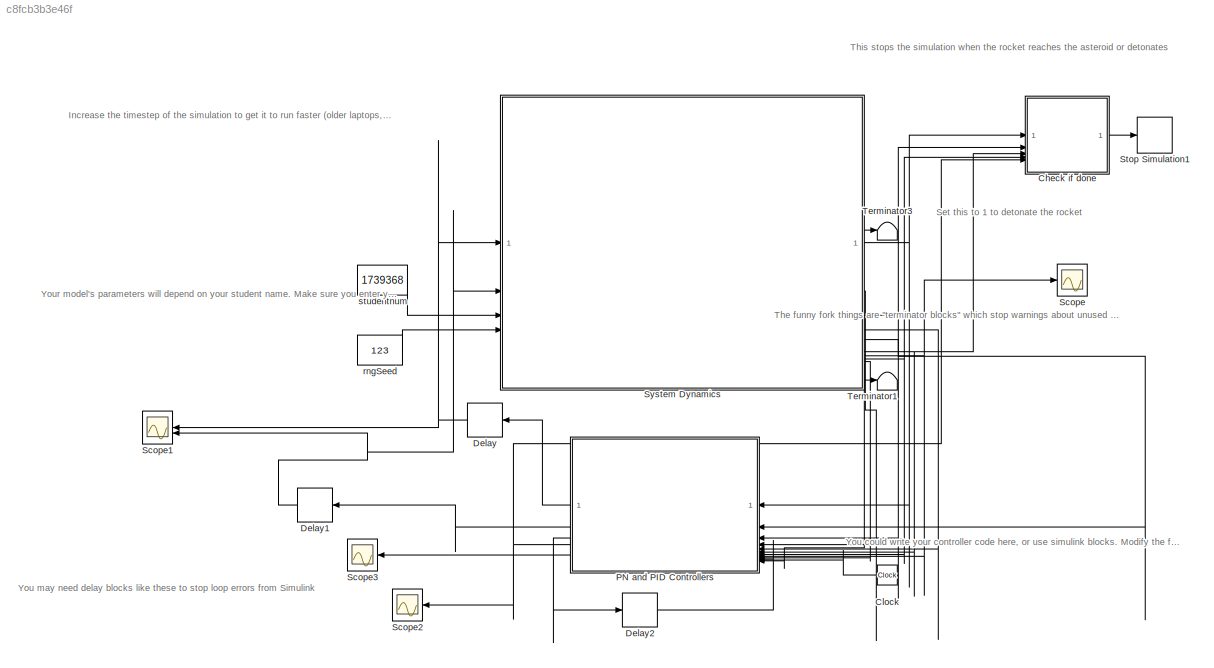
MODEL slx_c8fcb3b3e46f
KIND model
CONFIG AbsTol = auto
CONFIG EnableMultiTasking = off
CONFIG FixedStep = 0.001
CONFIG MaxStep = auto
CONFIG MinStep = auto
CONFIG RelTol = 1e-3
CONFIG SampleTimeConstraint = Unconstrained
CONFIG SolverName = ode4
CONFIG StartTime = 0.0
CONFIG StopTime = 45
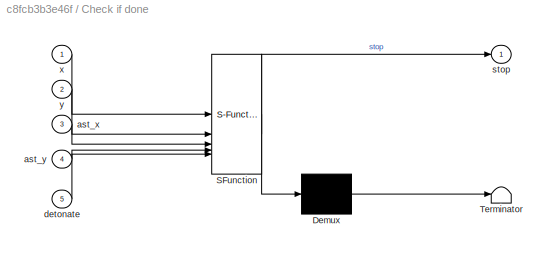
BLOCK [SubSystem] Check if done
  ErrorFcn = Stateflow.Translate.translate
  PermitHierarchicalResolution = ExplicitOnly
  SFBlockType = MATLAB Function
  TreatAsAtomicUnit = on
BLOCK [Demux] Check if done/ Demux 
  Outputs = 1
BLOCK [S-Function] Check if done/ SFunction 
  EnableBusSupport = on
  FunctionName = sf_sfun
  PortCounts = [5 2]
  SFcnIsStateOwnerBlock = off
  SFunctionDeploymentMode = off
  Tag = Stateflow S-Function 4
BLOCK [Terminator] Check if done/ Terminator 
BLOCK [Inport] Check if done/ast_x
  Port = 3
BLOCK [Inport] Check if done/ast_y
  Port = 4
BLOCK [Inport] Check if done/detonate
  Port = 5
BLOCK [Outport] Check if done/stop
  VectorParamsAs1DForOutWhenUnconnected = off
BLOCK [Inport] Check if done/x
BLOCK [Inport] Check if done/y
  Port = 2
BLOCK [Clock] Clock
  NameLocation = top
BLOCK [Delay] Delay
  DelayLength = 1
  InitialCondition = 10000000000
  InputPortMap = u0
  NameLocation = top
BLOCK [Delay] Delay1
  DelayLength = 1
  InputPortMap = u0
  NameLocation = top
BLOCK [Delay] Delay2
  DelayLength = 1
  InitialCondition = 0
  InputPortMap = u0
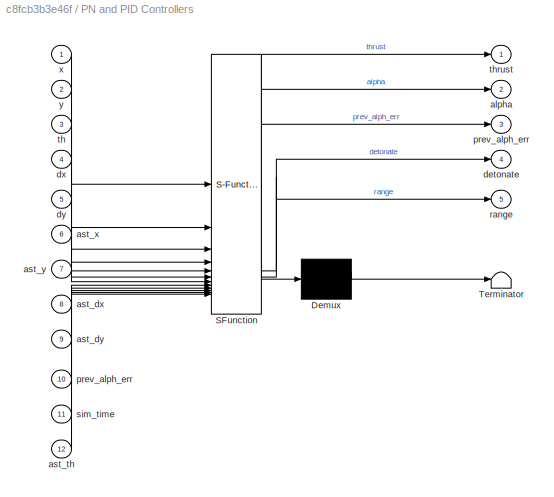
BLOCK [SubSystem] PN and PID Controllers
  ErrorFcn = Stateflow.Translate.translate
  PermitHierarchicalResolution = ExplicitOnly
  SFBlockType = MATLAB Function
  TreatAsAtomicUnit = on
BLOCK [Demux] PN and PID Controllers/ Demux 
  Outputs = 1
BLOCK [S-Function] PN and PID Controllers/ SFunction 
  EnableBusSupport = on
  FunctionName = sf_sfun
  PortCounts = [12 6]
  SFcnIsStateOwnerBlock = off
  SFunctionDeploymentMode = off
  Tag = Stateflow S-Function 2
BLOCK [Terminator] PN and PID Controllers/ Terminator 
BLOCK [Outport] PN and PID Controllers/alpha
  Port = 2
  VectorParamsAs1DForOutWhenUnconnected = off
BLOCK [Inport] PN and PID Controllers/ast_dx
  Port = 8
BLOCK [Inport] PN and PID Controllers/ast_dy
  Port = 9
BLOCK [Inport] PN and PID Controllers/ast_th
  Port = 12
BLOCK [Inport] PN and PID Controllers/ast_x
  Port = 6
BLOCK [Inport] PN and PID Controllers/ast_y
  Port = 7
BLOCK [Outport] PN and PID Controllers/detonate
  Port = 4
BLOCK [Inport] PN and PID Controllers/dx
  Port = 4
BLOCK [Inport] PN and PID Controllers/dy
  Port = 5
BLOCK [Outport] PN and PID Controllers/prev_alph_err
  Port = 3
BLOCK [Inport] PN and PID Controllers/prev_alph_err 
  Port = 10
BLOCK [Outport] PN and PID Controllers/range
  Port = 5
BLOCK [Inport] PN and PID Controllers/sim_time
  Port = 11
BLOCK [Inport] PN and PID Controllers/th
  Port = 3
BLOCK [Outport] PN and PID Controllers/thrust
  VectorParamsAs1DForOutWhenUnconnected = off
BLOCK [Inport] PN and PID Controllers/x
BLOCK [Inport] PN and PID Controllers/y
  Port = 2
BLOCK [Scope] Scope
  Floating = off
  NumInputPorts = 1
  ScopeSpecificationString = Simulink.scopes.TimeScopeBlockCfg('CurrentConfiguration', extmgr.ConfigurationSet(extmgr.Configuration('Core','General UI',true),extmgr.Configuration('Core','Source UI',true),extmgr.Configuration('Sources','WiredSimulink',true),extmgr.Configuration('Visuals','Time Domain',true,'SerializedDisplays',{struct('MinYLimReal','134.6873','MaxYLimReal','187.70967','YLabelReal','','MinYLimMag','134.6873','M...<+1395ch>
BLOCK [Scope] Scope1
  Floating = off
  NameLocation = top
  NumInputPorts = 2
  ScopeSpecificationString = Simulink.scopes.TimeScopeBlockCfg('CurrentConfiguration', extmgr.ConfigurationSet(extmgr.Configuration('Core','General UI',true),extmgr.Configuration('Core','Source UI',true),extmgr.Configuration('Sources','WiredSimulink',true,'DataLoggingVariableName','ScopeData1'),extmgr.Configuration('Visuals','Time Domain',true,'SerializedDisplays',{struct('MinYLimReal','-1250000004.4507','MaxYLimReal','112500...<+1470ch>
BLOCK [Scope] Scope2
  Floating = off
  NameLocation = top
  NumInputPorts = 1
  ScopeSpecificationString = Simulink.scopes.TimeScopeBlockCfg('CurrentConfiguration', extmgr.ConfigurationSet(extmgr.Configuration('Core','General UI',true),extmgr.Configuration('Core','Source UI',true),extmgr.Configuration('Sources','WiredSimulink',true,'DataLoggingVariableName','ScopeData1'),extmgr.Configuration('Visuals','Time Domain',true,'SerializedDisplays',{struct('MinYLimReal','-1.00000','MaxYLimReal','1.00000','YLab...<+1425ch>
BLOCK [Scope] Scope3
  Floating = off
  NameLocation = top
  NumInputPorts = 1
  ScopeSpecificationString = Simulink.scopes.TimeScopeBlockCfg('CurrentConfiguration', extmgr.ConfigurationSet(extmgr.Configuration('Core','General UI',true),extmgr.Configuration('Core','Source UI',true),extmgr.Configuration('Sources','WiredSimulink',true,'DataLoggingVariableName','ScopeData2'),extmgr.Configuration('Visuals','Time Domain',true,'SerializedDisplays',{struct('MinYLimReal','-223.44709','MaxYLimReal','4307.49421',...<+1745ch>
BLOCK [Stop] Stop Simulation1
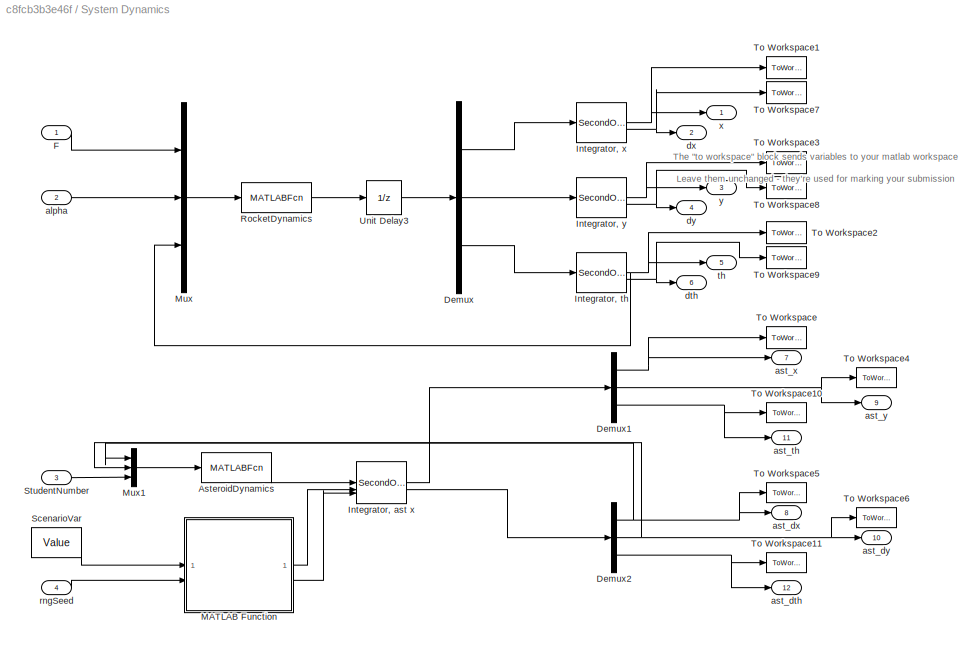
BLOCK [SubSystem] System Dynamics
  TreatAsAtomicUnit = on
BLOCK [MATLABFcn] System Dynamics/AsteroidDynamics
  MATLABFcn = AsteroidDynamics
  OutputDimensions = 3
BLOCK [Demux] System Dynamics/Demux
  Outputs = 3
BLOCK [Demux] System Dynamics/Demux1
  Outputs = 3
BLOCK [Demux] System Dynamics/Demux2
  Outputs = 3
BLOCK [Inport] System Dynamics/F
BLOCK [SecondOrderIntegrator] System Dynamics/Integrator, ast x
  ICSourceDXDT = external
  ICSourceX = external
  ICX = x0
BLOCK [SecondOrderIntegrator] System Dynamics/Integrator, th
  ICDXDT = 0
  ICX = 0
BLOCK [SecondOrderIntegrator] System Dynamics/Integrator, x
  ICX = 0
BLOCK [SecondOrderIntegrator] System Dynamics/Integrator, y
  ICX = 0
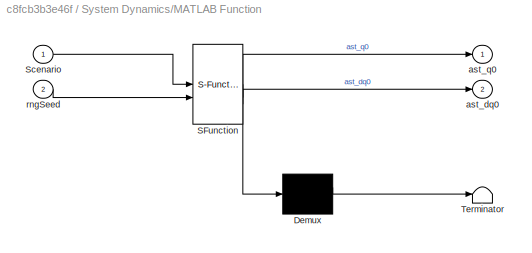
BLOCK [SubSystem] System Dynamics/MATLAB Function
  ErrorFcn = Stateflow.Translate.translate
  PermitHierarchicalResolution = ExplicitOnly
  SFBlockType = MATLAB Function
  TreatAsAtomicUnit = on
BLOCK [Demux] System Dynamics/MATLAB Function/ Demux 
  Outputs = 1
BLOCK [S-Function] System Dynamics/MATLAB Function/ SFunction 
  EnableBusSupport = on
  FunctionName = sf_sfun
  PortCounts = [2 3]
  SFcnIsStateOwnerBlock = off
  SFunctionDeploymentMode = off
  Tag = Stateflow S-Function 1
BLOCK [Terminator] System Dynamics/MATLAB Function/ Terminator 
BLOCK [Inport] System Dynamics/MATLAB Function/Scenario
BLOCK [Outport] System Dynamics/MATLAB Function/ast_dq0
  Port = 2
  VectorParamsAs1DForOutWhenUnconnected = off
BLOCK [Outport] System Dynamics/MATLAB Function/ast_q0
  VectorParamsAs1DForOutWhenUnconnected = off
BLOCK [Inport] System Dynamics/MATLAB Function/rngSeed
  Port = 2
BLOCK [Mux] System Dynamics/Mux
  DisplayOption = bar
  Inputs = 3
BLOCK [Mux] System Dynamics/Mux1
  DisplayOption = bar
  Inputs = 3
BLOCK [MATLABFcn] System Dynamics/RocketDynamics
  MATLABFcn = RocketDynamics
  Output1D = off
BLOCK [Constant] System Dynamics/ScenarioVar
  Value = Value
BLOCK [Inport] System Dynamics/StudentNumber
  Port = 3
BLOCK [ToWorkspace] System Dynamics/To Workspace
  FixptAsFi = on
  MaxDataPoints = inf
  SampleTime = -1
  VariableName = ast_x
BLOCK [ToWorkspace] System Dynamics/To Workspace1
  FixptAsFi = on
  MaxDataPoints = inf
  SampleTime = -1
  VariableName = x
BLOCK [ToWorkspace] System Dynamics/To Workspace10
  FixptAsFi = on
  MaxDataPoints = inf
  SampleTime = -1
  VariableName = ast_th
BLOCK [ToWorkspace] System Dynamics/To Workspace11
  FixptAsFi = on
  MaxDataPoints = inf
  SampleTime = -1
  VariableName = ast_dth
BLOCK [ToWorkspace] System Dynamics/To Workspace2
  FixptAsFi = on
  MaxDataPoints = inf
  SampleTime = -1
  VariableName = th
BLOCK [ToWorkspace] System Dynamics/To Workspace3
  FixptAsFi = on
  MaxDataPoints = inf
  SampleTime = -1
  VariableName = y
BLOCK [ToWorkspace] System Dynamics/To Workspace4
  FixptAsFi = on
  MaxDataPoints = inf
  SampleTime = -1
  VariableName = ast_y
BLOCK [ToWorkspace] System Dynamics/To Workspace5
  FixptAsFi = on
  MaxDataPoints = inf
  SampleTime = -1
  VariableName = ast_dx
BLOCK [ToWorkspace] System Dynamics/To Workspace6
  FixptAsFi = on
  MaxDataPoints = inf
  SampleTime = -1
  VariableName = ast_dy
BLOCK [ToWorkspace] System Dynamics/To Workspace7
  FixptAsFi = on
  MaxDataPoints = inf
  SampleTime = -1
  VariableName = dx
BLOCK [ToWorkspace] System Dynamics/To Workspace8
  FixptAsFi = on
  MaxDataPoints = inf
  SampleTime = -1
  VariableName = dy
BLOCK [ToWorkspace] System Dynamics/To Workspace9
  FixptAsFi = on
  MaxDataPoints = inf
  SampleTime = -1
  VariableName = dth
BLOCK [UnitDelay] System Dynamics/Unit Delay3
  HasFrameUpgradeWarning = on
  SampleTime = -1
BLOCK [Inport] System Dynamics/alpha
  Port = 2
BLOCK [Outport] System Dynamics/ast_dth
  Port = 12
  PortDimensions = 1
  VectorParamsAs1DForOutWhenUnconnected = off
BLOCK [Outport] System Dynamics/ast_dx
  Port = 8
  PortDimensions = 1
  VectorParamsAs1DForOutWhenUnconnected = off
BLOCK [Outport] System Dynamics/ast_dy
  Port = 10
  PortDimensions = 1
  VectorParamsAs1DForOutWhenUnconnected = off
BLOCK [Outport] System Dynamics/ast_th
  Port = 11
  PortDimensions = 1
  VectorParamsAs1DForOutWhenUnconnected = off
BLOCK [Outport] System Dynamics/ast_x
  Port = 7
  PortDimensions = 1
  VectorParamsAs1DForOutWhenUnconnected = off
BLOCK [Outport] System Dynamics/ast_y
  Port = 9
  PortDimensions = 1
  VectorParamsAs1DForOutWhenUnconnected = off
BLOCK [Outport] System Dynamics/dth
  Port = 6
  PortDimensions = 1
  VectorParamsAs1DForOutWhenUnconnected = off
BLOCK [Outport] System Dynamics/dx
  Port = 2
  PortDimensions = 1
  VectorParamsAs1DForOutWhenUnconnected = off
BLOCK [Outport] System Dynamics/dy
  Port = 4
  PortDimensions = 1
  VectorParamsAs1DForOutWhenUnconnected = off
BLOCK [Inport] System Dynamics/rngSeed
  Port = 4
BLOCK [Outport] System Dynamics/th
  Port = 5
  PortDimensions = 1
  VectorParamsAs1DForOutWhenUnconnected = off
BLOCK [Outport] System Dynamics/x
  PortDimensions = 1
  VectorParamsAs1DForOutWhenUnconnected = off
BLOCK [Outport] System Dynamics/y
  Port = 3
  PortDimensions = 1
  VectorParamsAs1DForOutWhenUnconnected = off
BLOCK [Terminator] Terminator1
BLOCK [Terminator] Terminator3
BLOCK [Constant] rngSeed
  Value = 123
BLOCK [Constant] studentnum
  Value = 1739368
ANNOTATION (root): Increase the timestep of the simulation to get it to run faster (older laptops, etc) or decrease it to get less lag for the (discrete parts of) your controller (higher sampling rate)
ANNOTATION (root): Set this to 1 to detonate the rocket
ANNOTATION (root): The funny fork things are "terminator blocks" which stop warnings about unused output blocks. Remove them when you need those ports
ANNOTATION (root): This stops the simulation when the rocket reaches the asteroid or detonates
ANNOTATION (root): You could write your controller code here, or use simulink blocks. Modify the functions inputs to get more inputs to the block
ANNOTATION (root): You may need delay blocks like these to stop loop errors from Simulink
ANNOTATION (root): Your model's parameters will depend on your student name. Make sure you enter yours correctly
ANNOTATION System Dynamics: The "to workspace" block sends variables to your matlab workspace Leave them unchanged - they're used for marking your submission
LINE Check if done:1 -> Stop Simulation1:1
LINE Clock:1 -> PN and PID Controllers:11
NET Delay1:1 -> Scope1:2, System Dynamics:2
LINE Delay2:1 -> PN and PID Controllers:10
NET Delay:1 -> Scope1:1, System Dynamics:1
LINE PN and PID Controllers:1 -> Delay:1
LINE PN and PID Controllers:2 -> Delay1:1
LINE PN and PID Controllers:3 -> Delay2:1
NET PN and PID Controllers:4 -> Check if done:5, Scope2:1
LINE PN and PID Controllers:5 -> Scope3:1
LINE System Dynamics/AsteroidDynamics:1 -> System Dynamics/Integrator, ast x:1
NET System Dynamics/Demux1:1 -> System Dynamics/To Workspace:1, System Dynamics/ast_x:1
NET System Dynamics/Demux1:2 -> System Dynamics/To Workspace4:1, System Dynamics/ast_y:1
NET System Dynamics/Demux1:3 -> System Dynamics/To Workspace10:1, System Dynamics/ast_th:1
NET System Dynamics/Demux2:1 -> System Dynamics/Mux1:1, System Dynamics/To Workspace5:1, System Dynamics/ast_dx:1
NET System Dynamics/Demux2:2 -> System Dynamics/Mux1:2, System Dynamics/To Workspace6:1, System Dynamics/ast_dy:1
NET System Dynamics/Demux2:3 -> System Dynamics/To Workspace11:1, System Dynamics/ast_dth:1
LINE System Dynamics/Demux:1 -> System Dynamics/Integrator, x:1
LINE System Dynamics/Demux:2 -> System Dynamics/Integrator, y:1
LINE System Dynamics/Demux:3 -> System Dynamics/Integrator, th:1
LINE System Dynamics/F:1 -> System Dynamics/Mux:1
LINE System Dynamics/Integrator, ast x:1 -> System Dynamics/Demux1:1
LINE System Dynamics/Integrator, ast x:2 -> System Dynamics/Demux2:1
NET System Dynamics/Integrator, th:1 -> System Dynamics/Mux:3, System Dynamics/To Workspace2:1, System Dynamics/th:1
NET System Dynamics/Integrator, th:2 -> System Dynamics/To Workspace9:1, System Dynamics/dth:1
NET System Dynamics/Integrator, x:1 -> System Dynamics/To Workspace1:1, System Dynamics/x:1
NET System Dynamics/Integrator, x:2 -> System Dynamics/To Workspace7:1, System Dynamics/dx:1
NET System Dynamics/Integrator, y:1 -> System Dynamics/To Workspace3:1, System Dynamics/y:1
NET System Dynamics/Integrator, y:2 -> System Dynamics/To Workspace8:1, System Dynamics/dy:1
LINE System Dynamics/MATLAB Function:1 -> System Dynamics/Integrator, ast x:2
LINE System Dynamics/MATLAB Function:2 -> System Dynamics/Integrator, ast x:3
LINE System Dynamics/Mux1:1 -> System Dynamics/AsteroidDynamics:1
LINE System Dynamics/Mux:1 -> System Dynamics/RocketDynamics:1
LINE System Dynamics/RocketDynamics:1 -> System Dynamics/Unit Delay3:1
LINE System Dynamics/ScenarioVar:1 -> System Dynamics/MATLAB Function:1
LINE System Dynamics/StudentNumber:1 -> System Dynamics/Mux1:3
LINE System Dynamics/Unit Delay3:1 -> System Dynamics/Demux:1
LINE System Dynamics/alpha:1 -> System Dynamics/Mux:2
LINE System Dynamics/rngSeed:1 -> System Dynamics/MATLAB Function:2
NET System Dynamics:1 -> Check if done:1, PN and PID Controllers:1
LINE System Dynamics:10 -> PN and PID Controllers:9
LINE System Dynamics:11 -> PN and PID Controllers:12
LINE System Dynamics:12 -> Terminator1:1
LINE System Dynamics:2 -> PN and PID Controllers:4
NET System Dynamics:3 -> Check if done:2, PN and PID Controllers:2
LINE System Dynamics:4 -> PN and PID Controllers:5
LINE System Dynamics:5 -> PN and PID Controllers:3
LINE System Dynamics:6 -> Terminator3:1
NET System Dynamics:7 -> Check if done:3, PN and PID Controllers:6
NET System Dynamics:8 -> PN and PID Controllers:8, Scope:1
NET System Dynamics:9 -> Check if done:4, PN and PID Controllers:7
LINE rngSeed:1 -> System Dynamics:4
LINE studentnum:1 -> System Dynamics:3
note: NET lines group one-source signal fan-out (src -> all destinations, sorted); 1:1 wires keep LINE
CHART System Dynamics/MATLAB Function states=1 transitions=1
  STATE_LABEL 'eML_blk_kernel()'
  STATE_LABEL 'SCRIPT:\nfunction [ast_q0, ast_dq0] = fcn(Scenario, rngSeed)\nrng(rngSeed);\n\nif (Scenario == 1)\n    x0 = -3000;\n    y0 =  5000;\n    th0 =   0;\n    dx0 = 182;\n    dy0 = 0;\n    dth0 = 0;\n\nelseif (Scenario == 2)\n    x0 = -2000 + rand_within_plus_minus(100);\n    y0 = 4000 + rand_within_plus_minus(100); \n    th0 = 0;\n    dx0 = 170;\n    dy0 = 0;\n    dth0 = 0.1;\n\nelseif (Scenario == 3)\n    x0 = -2500;\n    ...<+422ch>'
CHART PN and PID Controllers states=1 transitions=1
  STATE_LABEL 'eML_blk_kernel()'
  STATE_LABEL "SCRIPT:\nfunction [thrust, alpha, prev_alph_err, detonate, range] = fcn(x, y, th, dx, dy, ast_x, ast_y, ast_dx, ast_dy, prev_alph_err, sim_time, ast_th)\n\n% Constants\nmass = 1000; % Mass of the rocket (kg)\ngravity = 9.81; % Gravitational acceleration (m/s^2)\n\n% Positions and velocities in inertial frame\nrocket_pos = [x; y; 0];    % Rocket's position in 3D\nrocket_vel = [dx; dy; 0];  % Rocket's veloci...<+3608ch>"
CHART Check if done states=1 transitions=1
  STATE_LABEL 'eML_blk_kernel()'
  STATE_LABEL 'SCRIPT:\nfunction stop = fcn(x, y, ast_x, ast_y, detonate)\n    % given the signal to detonate\n    if detonate == 1\n        stop = 1;\n\n    % rocket has hit the asteroid\n    % adjusted collision distance to increase angle correction time\n    elseif norm([x; y] - [ast_x; ast_y]) < 10\n        stop = 1;\n    \n    % rocket has hit the ground OR asteroid is close to they city\n    elseif y < 0 || ast_y < 20...<+63ch>'
CHART  states=0 transitions=0
CHART  states=0 transitions=0
CHART  states=0 transitions=0
